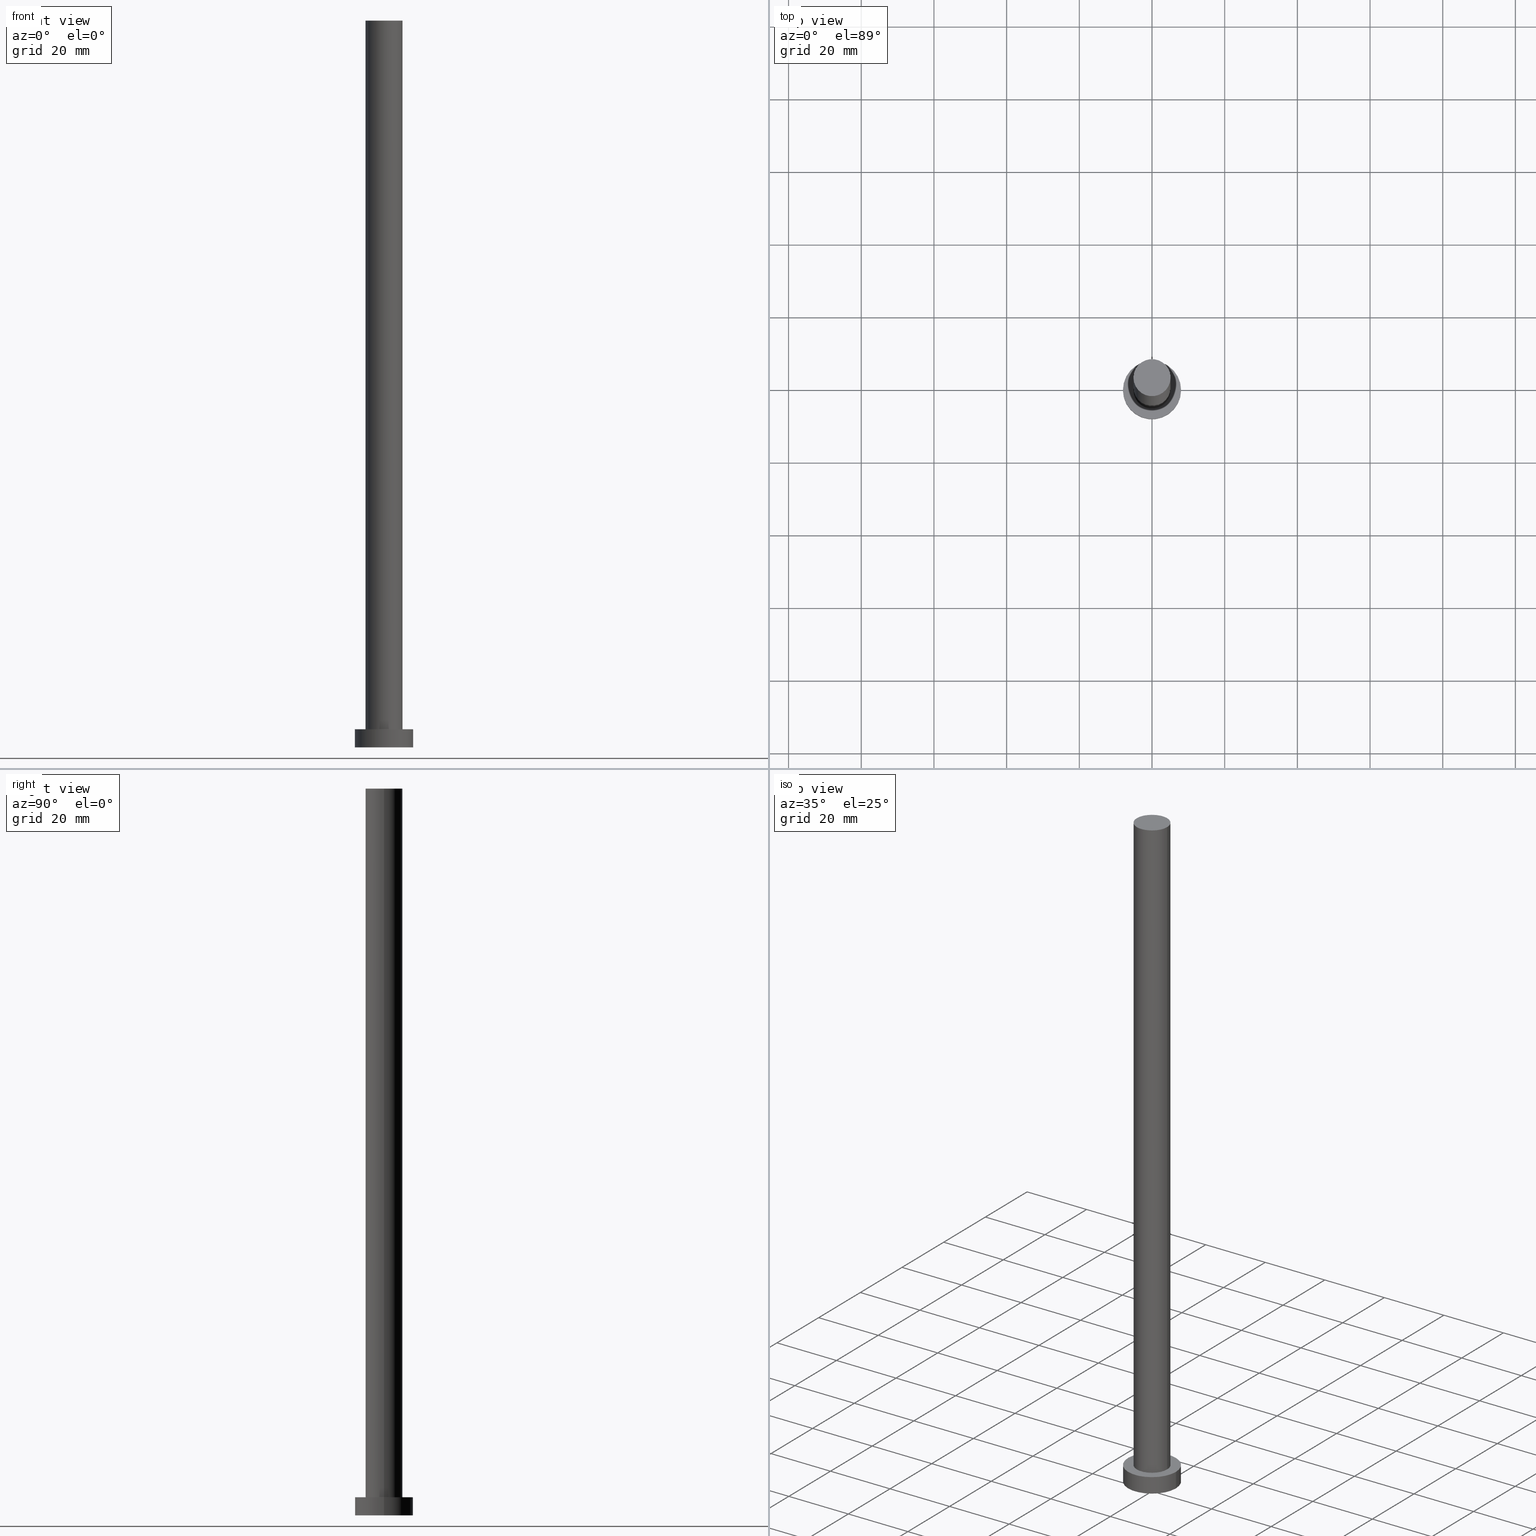
[diagram: canonical four-view strip — front | top / right | iso, engineering-drawing reading convention]
A machine part, canonical four-view strip (front | top / right | iso — engineering-drawing reading convention). The complete STEP part file that produces these views, byte-faithful:
ISO-10303-21;
HEADER;
FILE_DESCRIPTION (( 'STEP AP203' ),
    '1' );
FILE_NAME ('22e8.STEP',
    '2023-02-12T10:59:09',
    ( '' ),
    ( '' ),
    'SwSTEP 2.0',
    'SolidWorks 2019',
    '' );
FILE_SCHEMA (( 'CONFIG_CONTROL_DESIGN' ));
ENDSEC;

DATA;
#1 = EDGE_CURVE ( 'NONE', #16, #27, #253, .T. ) ;
#2 = CC_DESIGN_APPROVAL ( #31, ( #178 ) ) ;
#3 = CARTESIAN_POINT ( 'NONE',  ( 8.000000000000000000, 9.797174393178825657E-16, 5.000000000000000000 ) ) ;
#4 = CARTESIAN_POINT ( 'NONE',  ( 0.000000000000000000, 0.000000000000000000, 200.0000000000000000 ) ) ;
#5 = CC_DESIGN_APPROVAL ( #152, ( #174 ) ) ;
#6 = ORIENTED_EDGE ( 'NONE', *, *, #137, .T. ) ;
#7 = DIRECTION ( 'NONE',  ( 1.000000000000000000, 0.000000000000000000, -0.000000000000000000 ) ) ;
#8 = CC_DESIGN_PERSON_AND_ORGANIZATION_ASSIGNMENT ( #116, #33, ( #174 ) ) ;
#9 = DIRECTION ( 'NONE',  ( 1.000000000000000000, 0.000000000000000000, 0.000000000000000000 ) ) ;
#10 = CARTESIAN_POINT ( 'NONE',  ( 0.000000000000000000, 0.000000000000000000, 0.000000000000000000 ) ) ;
#11 = CARTESIAN_POINT ( 'NONE',  ( 0.000000000000000000, 0.000000000000000000, 200.0000000000000000 ) ) ;
#12 = AXIS2_PLACEMENT_3D ( 'NONE', #143, #42, #192 ) ;
#13 = COORDINATED_UNIVERSAL_TIME_OFFSET ( 1, 0, .AHEAD. ) ;
#14 = CALENDAR_DATE ( 2023, 12, 2 ) ;
#15 = ADVANCED_FACE ( 'NONE', ( #100 ), #175, .T. ) ;
#16 = VERTEX_POINT ( 'NONE', #93 ) ;
#17 = APPLICATION_PROTOCOL_DEFINITION ( 'international standard', 'config_control_design', 1994, #177 ) ;
#18 = ORIENTED_EDGE ( 'NONE', *, *, #233, .T. ) ;
#19 = EDGE_LOOP ( 'NONE', ( #122, #202, #98, #48 ) ) ;
#20 = APPROVAL_PERSON_ORGANIZATION ( #231, #152, #149 ) ;
#21 = LINE ( 'NONE', #159, #189 ) ;
#22 = DIRECTION ( 'NONE',  ( 0.000000000000000000, 0.000000000000000000, 1.000000000000000000 ) ) ;
#23 = EDGE_CURVE ( 'NONE', #170, #27, #255, .T. ) ;
#24 = VERTEX_POINT ( 'NONE', #25 ) ;
#25 = CARTESIAN_POINT ( 'NONE',  ( -5.099999999999999645, 0.000000000000000000, 200.0000000000000000 ) ) ;
#26 = EDGE_CURVE ( 'NONE', #16, #134, #28, .T. ) ;
#27 = VERTEX_POINT ( 'NONE', #103 ) ;
#28 = CIRCLE ( 'NONE', #172, 8.000000000000000000 ) ;
#29 = CARTESIAN_POINT ( 'NONE',  ( 0.000000000000000000, 0.000000000000000000, 5.000000000000000000 ) ) ;
#30 = FACE_OUTER_BOUND ( 'NONE', #120, .T. ) ;
#31 = APPROVAL ( #34, 'NEUR�EN�' ) ;
#32 = LOCAL_TIME ( 11, 59, 9.000000000000000000, #36 ) ;
#33 = PERSON_AND_ORGANIZATION_ROLE ( 'creator' ) ;
#34 = APPROVAL_STATUS ( 'not_yet_approved' ) ;
#35 = ORIENTED_EDGE ( 'NONE', *, *, #104, .T. ) ;
#36 = COORDINATED_UNIVERSAL_TIME_OFFSET ( 1, 0, .AHEAD. ) ;
#37 = LOCAL_TIME ( 11, 59, 9.000000000000000000, #13 ) ;
#38 = DATE_TIME_ROLE ( 'creation_date' ) ;
#39 = CARTESIAN_POINT ( 'NONE',  ( -8.000000000000000000, 0.000000000000000000, 5.000000000000000000 ) ) ;
#40 = AXIS2_PLACEMENT_3D ( 'NONE', #241, #180, #79 ) ;
#41 = ORIENTED_EDGE ( 'NONE', *, *, #23, .F. ) ;
#42 = DIRECTION ( 'NONE',  ( 0.000000000000000000, 0.000000000000000000, 1.000000000000000000 ) ) ;
#43 = EDGE_LOOP ( 'NONE', ( #221, #225, #112, #251 ) ) ;
#44 = CIRCLE ( 'NONE', #205, 5.099999999999999645 ) ;
#45 = CARTESIAN_POINT ( 'NONE',  ( -5.099999999999999645, 0.000000000000000000, 200.0000000000000000 ) ) ;
#46 = EDGE_CURVE ( 'NONE', #24, #125, #135, .T. ) ;
#47 = DIRECTION ( 'NONE',  ( 0.000000000000000000, 0.000000000000000000, 1.000000000000000000 ) ) ;
#48 = ORIENTED_EDGE ( 'NONE', *, *, #167, .T. ) ;
#49 = DIRECTION ( 'NONE',  ( 1.000000000000000000, 0.000000000000000000, 0.000000000000000000 ) ) ;
#50 =( NAMED_UNIT ( * ) SI_UNIT ( $, .STERADIAN. ) SOLID_ANGLE_UNIT ( ) );
#51 = ORIENTED_EDGE ( 'NONE', *, *, #167, .F. ) ;
#52 = DIRECTION ( 'NONE',  ( -0.000000000000000000, -0.000000000000000000, -1.000000000000000000 ) ) ;
#53 = CALENDAR_DATE ( 2023, 12, 2 ) ;
#54 = AXIS2_PLACEMENT_3D ( 'NONE', #127, #52, #182 ) ;
#55 = COORDINATED_UNIVERSAL_TIME_OFFSET ( 1, 0, .AHEAD. ) ;
#56 = APPROVAL ( #113, 'NEUR�EN�' ) ;
#57 = EDGE_LOOP ( 'NONE', ( #191, #227, #35, #18 ) ) ;
#58 = PERSON_AND_ORGANIZATION_ROLE ( 'classification_officer' ) ;
#59 = APPROVAL_DATE_TIME ( #235, #31 ) ;
#60 = PERSON ( 'NEUR�EN�', 'NEUR�EN�', 'NEUR�EN�', ('NEUR�EN�'), ('NEUR�EN�'), ('NEUR�EN�') ) ;
#61 = ORIENTED_EDGE ( 'NONE', *, *, #245, .T. ) ;
#62 = CC_DESIGN_PERSON_AND_ORGANIZATION_ASSIGNMENT ( #97, #148, ( #178 ) ) ;
#63 = UNCERTAINTY_MEASURE_WITH_UNIT (LENGTH_MEASURE( 1.000000000000000082E-05 ), #203, 'distance_accuracy_value', 'NONE');
#64 = DIRECTION ( 'NONE',  ( 0.000000000000000000, 0.000000000000000000, 1.000000000000000000 ) ) ;
#65 = AXIS2_PLACEMENT_3D ( 'NONE', #29, #204, #166 ) ;
#66 = CIRCLE ( 'NONE', #179, 8.000000000000000000 ) ;
#67 = LINE ( 'NONE', #45, #230 ) ;
#68 = DIRECTION ( 'NONE',  ( -0.000000000000000000, -0.000000000000000000, -1.000000000000000000 ) ) ;
#69 = FACE_OUTER_BOUND ( 'NONE', #220, .T. ) ;
#70 = CARTESIAN_POINT ( 'NONE',  ( 5.099999999999999645, 6.245698675651500839E-16, 5.000000000000000000 ) ) ;
#71 = CLOSED_SHELL ( 'NONE', ( #229, #15, #77, #219, #123, #95, #85 ) ) ;
#72 = ORIENTED_EDGE ( 'NONE', *, *, #121, .F. ) ;
#73 = LOCAL_TIME ( 11, 59, 9.000000000000000000, #55 ) ;
#74 = CALENDAR_DATE ( 2023, 12, 2 ) ;
#75 = CARTESIAN_POINT ( 'NONE',  ( 0.000000000000000000, 0.000000000000000000, 5.000000000000000000 ) ) ;
#76 = PERSON_AND_ORGANIZATION ( #60, #130 ) ;
#77 = ADVANCED_FACE ( 'NONE', ( #239 ), #157, .T. ) ;
#78 = APPROVAL_DATE_TIME ( #216, #56 ) ;
#79 = DIRECTION ( 'NONE',  ( -1.000000000000000000, 0.000000000000000000, 0.000000000000000000 ) ) ;
#80 = DIRECTION ( 'NONE',  ( 0.000000000000000000, 0.000000000000000000, 1.000000000000000000 ) ) ;
#81 = PLANE ( 'NONE',  #117 ) ;
#82 = VECTOR ( 'NONE', #250, 1000.000000000000000 ) ;
#83 = PLANE ( 'NONE',  #65 ) ;
#84 = CARTESIAN_POINT ( 'NONE',  ( 8.000000000000000000, 9.797174393178825657E-16, 0.000000000000000000 ) ) ;
#85 = ADVANCED_FACE ( 'NONE', ( #140 ), #81, .T. ) ;
#86 = FACE_BOUND ( 'NONE', #96, .T. ) ;
#87 = DIRECTION ( 'NONE',  ( 1.000000000000000000, 0.000000000000000000, 0.000000000000000000 ) ) ;
#88 = EDGE_CURVE ( 'NONE', #125, #243, #21, .T. ) ;
#89 = DATE_AND_TIME ( #74, #32 ) ;
#90 = CIRCLE ( 'NONE', #126, 5.099999999999999645 ) ;
#91 = CALENDAR_DATE ( 2023, 12, 2 ) ;
#92 = PRODUCT ( '22e8', '22e8', '', ( #236 ) ) ;
#93 = CARTESIAN_POINT ( 'NONE',  ( -8.000000000000000000, 0.000000000000000000, 5.000000000000000000 ) ) ;
#94 = AXIS2_PLACEMENT_3D ( 'NONE', #4, #80, #99 ) ;
#95 = ADVANCED_FACE ( 'NONE', ( #163 ), #224, .T. ) ;
#96 = EDGE_LOOP ( 'NONE', ( #165, #72 ) ) ;
#97 = PERSON_AND_ORGANIZATION ( #60, #130 ) ;
#98 = ORIENTED_EDGE ( 'NONE', *, *, #1, .T. ) ;
#99 = DIRECTION ( 'NONE',  ( 1.000000000000000000, 0.000000000000000000, 0.000000000000000000 ) ) ;
#100 = FACE_OUTER_BOUND ( 'NONE', #194, .T. ) ;
#101 = DIRECTION ( 'NONE',  ( 1.000000000000000000, 0.000000000000000000, 0.000000000000000000 ) ) ;
#102 = CARTESIAN_POINT ( 'NONE',  ( 0.000000000000000000, 0.000000000000000000, 5.000000000000000000 ) ) ;
#103 = CARTESIAN_POINT ( 'NONE',  ( -8.000000000000000000, 0.000000000000000000, 0.000000000000000000 ) ) ;
#104 = EDGE_CURVE ( 'NONE', #24, #217, #67, .T. ) ;
#105 = FACE_OUTER_BOUND ( 'NONE', #43, .T. ) ;
#106 = APPLICATION_PROTOCOL_DEFINITION ( 'international standard', 'config_control_design', 1994, #109 ) ;
#107 = DIRECTION ( 'NONE',  ( 0.000000000000000000, 0.000000000000000000, 1.000000000000000000 ) ) ;
#108 = CARTESIAN_POINT ( 'NONE',  ( 0.000000000000000000, 0.000000000000000000, 5.000000000000000000 ) ) ;
#109 = APPLICATION_CONTEXT ( 'configuration controlled 3d designs of mechanical parts and assemblies' ) ;
#110 = PERSON_AND_ORGANIZATION ( #60, #130 ) ;
#111 = CALENDAR_DATE ( 2023, 12, 2 ) ;
#112 = ORIENTED_EDGE ( 'NONE', *, *, #121, .T. ) ;
#113 = APPROVAL_STATUS ( 'not_yet_approved' ) ;
#114 =( GEOMETRIC_REPRESENTATION_CONTEXT ( 3 ) GLOBAL_UNCERTAINTY_ASSIGNED_CONTEXT ( ( #63 ) ) GLOBAL_UNIT_ASSIGNED_CONTEXT ( ( #203, #246, #50 ) ) REPRESENTATION_CONTEXT ( 'NONE', 'WORKASPACE' ) );
#115 = DIRECTION ( 'NONE',  ( -1.000000000000000000, 0.000000000000000000, 0.000000000000000000 ) ) ;
#116 = PERSON_AND_ORGANIZATION ( #60, #130 ) ;
#117 = AXIS2_PLACEMENT_3D ( 'NONE', #238, #142, #7 ) ;
#118 = ORIENTED_EDGE ( 'NONE', *, *, #1, .F. ) ;
#119 = DIRECTION ( 'NONE',  ( -0.000000000000000000, -0.000000000000000000, -1.000000000000000000 ) ) ;
#120 = EDGE_LOOP ( 'NONE', ( #154, #6 ) ) ;
#121 = EDGE_CURVE ( 'NONE', #243, #217, #218, .T. ) ;
#122 = ORIENTED_EDGE ( 'NONE', *, *, #210, .F. ) ;
#123 = ADVANCED_FACE ( 'NONE', ( #69 ), #237, .F. ) ;
#124 = CARTESIAN_POINT ( 'NONE',  ( -5.099999999999999645, 0.000000000000000000, 5.000000000000000000 ) ) ;
#125 = VERTEX_POINT ( 'NONE', #176 ) ;
#126 = AXIS2_PLACEMENT_3D ( 'NONE', #11, #144, #226 ) ;
#127 = CARTESIAN_POINT ( 'NONE',  ( 0.000000000000000000, 0.000000000000000000, 200.0000000000000000 ) ) ;
#128 = DIRECTION ( 'NONE',  ( 0.000000000000000000, 0.000000000000000000, 1.000000000000000000 ) ) ;
#129 = PERSON_AND_ORGANIZATION ( #60, #130 ) ;
#130 = ORGANIZATION ( 'NEUR�EN�', 'NEUR�EN�', '' ) ;
#131 = ORIENTED_EDGE ( 'NONE', *, *, #137, .F. ) ;
#132 = DATE_TIME_ROLE ( 'classification_date' ) ;
#133 = COORDINATED_UNIVERSAL_TIME_OFFSET ( 1, 0, .AHEAD. ) ;
#134 = VERTEX_POINT ( 'NONE', #3 ) ;
#135 = CIRCLE ( 'NONE', #94, 5.099999999999999645 ) ;
#136 = DESIGN_CONTEXT ( 'detailed design', #177, 'design' ) ;
#137 = EDGE_CURVE ( 'NONE', #134, #16, #66, .T. ) ;
#138 = EDGE_LOOP ( 'NONE', ( #214, #61 ) ) ;
#139 = SHAPE_DEFINITION_REPRESENTATION ( #232, #156 ) ;
#140 = FACE_OUTER_BOUND ( 'NONE', #138, .T. ) ;
#141 = AXIS2_PLACEMENT_3D ( 'NONE', #173, #198, #196 ) ;
#142 = DIRECTION ( 'NONE',  ( 0.000000000000000000, 0.000000000000000000, 1.000000000000000000 ) ) ;
#143 = CARTESIAN_POINT ( 'NONE',  ( 0.000000000000000000, 0.000000000000000000, 0.000000000000000000 ) ) ;
#144 = DIRECTION ( 'NONE',  ( 0.000000000000000000, 0.000000000000000000, 1.000000000000000000 ) ) ;
#145 = CC_DESIGN_PERSON_AND_ORGANIZATION_ASSIGNMENT ( #110, #151, ( #174 ) ) ;
#146 = CARTESIAN_POINT ( 'NONE',  ( 0.000000000000000000, 0.000000000000000000, 0.000000000000000000 ) ) ;
#147 = APPROVAL_PERSON_ORGANIZATION ( #215, #56, #171 ) ;
#148 = PERSON_AND_ORGANIZATION_ROLE ( 'creator' ) ;
#149 = APPROVAL_ROLE ( '' ) ;
#150 = DIRECTION ( 'NONE',  ( -0.000000000000000000, -0.000000000000000000, -1.000000000000000000 ) ) ;
#151 = PERSON_AND_ORGANIZATION_ROLE ( 'design_supplier' ) ;
#152 = APPROVAL ( #252, 'NEUR�EN�' ) ;
#153 = DIRECTION ( 'NONE',  ( -0.000000000000000000, -0.000000000000000000, -1.000000000000000000 ) ) ;
#154 = ORIENTED_EDGE ( 'NONE', *, *, #26, .T. ) ;
#155 = CARTESIAN_POINT ( 'NONE',  ( 0.000000000000000000, 0.000000000000000000, 5.000000000000000000 ) ) ;
#156 = ADVANCED_BREP_SHAPE_REPRESENTATION ( '22e8', ( #211, #228 ), #114 ) ;
#157 = CYLINDRICAL_SURFACE ( 'NONE', #160, 8.000000000000000000 ) ;
#158 = APPROVAL_PERSON_ORGANIZATION ( #169, #31, #212 ) ;
#159 = CARTESIAN_POINT ( 'NONE',  ( 5.099999999999999645, 6.245698675651500839E-16, 200.0000000000000000 ) ) ;
#160 = AXIS2_PLACEMENT_3D ( 'NONE', #162, #68, #222 ) ;
#161 = PRODUCT_RELATED_PRODUCT_CATEGORY ( 'detail', '', ( #92 ) ) ;
#162 = CARTESIAN_POINT ( 'NONE',  ( 0.000000000000000000, 0.000000000000000000, 5.000000000000000000 ) ) ;
#163 = FACE_OUTER_BOUND ( 'NONE', #57, .T. ) ;
#164 = LOCAL_TIME ( 11, 59, 9.000000000000000000, #188 ) ;
#165 = ORIENTED_EDGE ( 'NONE', *, *, #233, .F. ) ;
#166 = DIRECTION ( 'NONE',  ( 1.000000000000000000, 0.000000000000000000, -0.000000000000000000 ) ) ;
#167 = EDGE_CURVE ( 'NONE', #27, #170, #206, .T. ) ;
#168 = DATE_AND_TIME ( #14, #37 ) ;
#169 = PERSON_AND_ORGANIZATION ( #60, #130 ) ;
#170 = VERTEX_POINT ( 'NONE', #84 ) ;
#171 = APPROVAL_ROLE ( '' ) ;
#172 = AXIS2_PLACEMENT_3D ( 'NONE', #102, #22, #101 ) ;
#173 = CARTESIAN_POINT ( 'NONE',  ( 0.000000000000000000, 0.000000000000000000, 0.000000000000000000 ) ) ;
#174 = PRODUCT_DEFINITION_FORMATION_WITH_SPECIFIED_SOURCE ( 'LIBOVOLN�', '', #92, .NOT_KNOWN. ) ;
#175 = CYLINDRICAL_SURFACE ( 'NONE', #248, 8.000000000000000000 ) ;
#176 = CARTESIAN_POINT ( 'NONE',  ( 5.099999999999999645, 6.245698675651500839E-16, 200.0000000000000000 ) ) ;
#177 = APPLICATION_CONTEXT ( 'configuration controlled 3d designs of mechanical parts and assemblies' ) ;
#178 = PRODUCT_DEFINITION ( 'NEZN�M�', '', #174, #136 ) ;
#179 = AXIS2_PLACEMENT_3D ( 'NONE', #155, #64, #247 ) ;
#180 = DIRECTION ( 'NONE',  ( -0.000000000000000000, -0.000000000000000000, -1.000000000000000000 ) ) ;
#181 = SECURITY_CLASSIFICATION ( '', '', #184 ) ;
#182 = DIRECTION ( 'NONE',  ( -1.000000000000000000, 0.000000000000000000, 0.000000000000000000 ) ) ;
#183 = DIRECTION ( 'NONE',  ( 1.000000000000000000, 0.000000000000000000, 0.000000000000000000 ) ) ;
#184 = SECURITY_CLASSIFICATION_LEVEL ( 'unclassified' ) ;
#185 = DATE_AND_TIME ( #53, #73 ) ;
#186 = ORIENTED_EDGE ( 'NONE', *, *, #210, .T. ) ;
#187 = CC_DESIGN_SECURITY_CLASSIFICATION ( #181, ( #174 ) ) ;
#188 = COORDINATED_UNIVERSAL_TIME_OFFSET ( 1, 0, .AHEAD. ) ;
#189 = VECTOR ( 'NONE', #240, 1000.000000000000000 ) ;
#190 = PERSON_AND_ORGANIZATION_ROLE ( 'design_owner' ) ;
#191 = ORIENTED_EDGE ( 'NONE', *, *, #88, .F. ) ;
#192 = DIRECTION ( 'NONE',  ( 1.000000000000000000, 0.000000000000000000, -0.000000000000000000 ) ) ;
#193 = LOCAL_TIME ( 11, 59, 9.000000000000000000, #133 ) ;
#194 = EDGE_LOOP ( 'NONE', ( #131, #186, #199, #118 ) ) ;
#195 = CC_DESIGN_PERSON_AND_ORGANIZATION_ASSIGNMENT ( #76, #58, ( #181 ) ) ;
#196 = DIRECTION ( 'NONE',  ( 1.000000000000000000, 0.000000000000000000, 0.000000000000000000 ) ) ;
#197 = AXIS2_PLACEMENT_3D ( 'NONE', #10, #128, #87 ) ;
#198 = DIRECTION ( 'NONE',  ( 0.000000000000000000, 0.000000000000000000, 1.000000000000000000 ) ) ;
#199 = ORIENTED_EDGE ( 'NONE', *, *, #23, .T. ) ;
#200 = CC_DESIGN_DATE_AND_TIME_ASSIGNMENT ( #89, #38, ( #178 ) ) ;
#201 = AXIS2_PLACEMENT_3D ( 'NONE', #223, #47, #49 ) ;
#202 = ORIENTED_EDGE ( 'NONE', *, *, #26, .F. ) ;
#203 =( LENGTH_UNIT ( ) NAMED_UNIT ( * ) SI_UNIT ( .MILLI., .METRE. ) );
#204 = DIRECTION ( 'NONE',  ( 0.000000000000000000, 0.000000000000000000, 1.000000000000000000 ) ) ;
#205 = AXIS2_PLACEMENT_3D ( 'NONE', #108, #207, #183 ) ;
#206 = CIRCLE ( 'NONE', #197, 8.000000000000000000 ) ;
#207 = DIRECTION ( 'NONE',  ( 0.000000000000000000, 0.000000000000000000, 1.000000000000000000 ) ) ;
#208 = VECTOR ( 'NONE', #150, 1000.000000000000000 ) ;
#209 = LINE ( 'NONE', #242, #82 ) ;
#210 = EDGE_CURVE ( 'NONE', #134, #170, #209, .T. ) ;
#211 = MANIFOLD_SOLID_BREP ( 'P�idat vysunut�m3', #71 ) ;
#212 = APPROVAL_ROLE ( '' ) ;
#213 = CC_DESIGN_DATE_AND_TIME_ASSIGNMENT ( #168, #132, ( #181 ) ) ;
#214 = ORIENTED_EDGE ( 'NONE', *, *, #46, .T. ) ;
#215 = PERSON_AND_ORGANIZATION ( #60, #130 ) ;
#216 = DATE_AND_TIME ( #91, #193 ) ;
#217 = VERTEX_POINT ( 'NONE', #124 ) ;
#218 = CIRCLE ( 'NONE', #201, 5.099999999999999645 ) ;
#219 = ADVANCED_FACE ( 'NONE', ( #86, #30 ), #83, .T. ) ;
#220 = EDGE_LOOP ( 'NONE', ( #51, #41 ) ) ;
#221 = ORIENTED_EDGE ( 'NONE', *, *, #245, .F. ) ;
#222 = DIRECTION ( 'NONE',  ( -1.000000000000000000, 0.000000000000000000, 0.000000000000000000 ) ) ;
#223 = CARTESIAN_POINT ( 'NONE',  ( 0.000000000000000000, 0.000000000000000000, 5.000000000000000000 ) ) ;
#224 = CYLINDRICAL_SURFACE ( 'NONE', #40, 5.099999999999999645 ) ;
#225 = ORIENTED_EDGE ( 'NONE', *, *, #88, .T. ) ;
#226 = DIRECTION ( 'NONE',  ( 1.000000000000000000, 0.000000000000000000, 0.000000000000000000 ) ) ;
#227 = ORIENTED_EDGE ( 'NONE', *, *, #46, .F. ) ;
#228 = AXIS2_PLACEMENT_3D ( 'NONE', #146, #107, #9 ) ;
#229 = ADVANCED_FACE ( 'NONE', ( #105 ), #244, .T. ) ;
#230 = VECTOR ( 'NONE', #119, 1000.000000000000000 ) ;
#231 = PERSON_AND_ORGANIZATION ( #60, #130 ) ;
#232 = PRODUCT_DEFINITION_SHAPE ( 'NONE', 'NONE',  #178 ) ;
#233 = EDGE_CURVE ( 'NONE', #217, #243, #44, .T. ) ;
#234 = CC_DESIGN_APPROVAL ( #56, ( #181 ) ) ;
#235 = DATE_AND_TIME ( #111, #164 ) ;
#236 = MECHANICAL_CONTEXT ( 'NONE', #109, 'mechanical' ) ;
#237 = PLANE ( 'NONE',  #12 ) ;
#238 = CARTESIAN_POINT ( 'NONE',  ( 0.000000000000000000, 0.000000000000000000, 200.0000000000000000 ) ) ;
#239 = FACE_OUTER_BOUND ( 'NONE', #19, .T. ) ;
#240 = DIRECTION ( 'NONE',  ( -0.000000000000000000, -0.000000000000000000, -1.000000000000000000 ) ) ;
#241 = CARTESIAN_POINT ( 'NONE',  ( 0.000000000000000000, 0.000000000000000000, 200.0000000000000000 ) ) ;
#242 = CARTESIAN_POINT ( 'NONE',  ( 8.000000000000000000, 9.797174393178825657E-16, 5.000000000000000000 ) ) ;
#243 = VERTEX_POINT ( 'NONE', #70 ) ;
#244 = CYLINDRICAL_SURFACE ( 'NONE', #54, 5.099999999999999645 ) ;
#245 = EDGE_CURVE ( 'NONE', #125, #24, #90, .T. ) ;
#246 =( NAMED_UNIT ( * ) PLANE_ANGLE_UNIT ( ) SI_UNIT ( $, .RADIAN. ) );
#247 = DIRECTION ( 'NONE',  ( 1.000000000000000000, 0.000000000000000000, 0.000000000000000000 ) ) ;
#248 = AXIS2_PLACEMENT_3D ( 'NONE', #75, #153, #115 ) ;
#249 = CC_DESIGN_PERSON_AND_ORGANIZATION_ASSIGNMENT ( #129, #190, ( #92 ) ) ;
#250 = DIRECTION ( 'NONE',  ( -0.000000000000000000, -0.000000000000000000, -1.000000000000000000 ) ) ;
#251 = ORIENTED_EDGE ( 'NONE', *, *, #104, .F. ) ;
#252 = APPROVAL_STATUS ( 'not_yet_approved' ) ;
#253 = LINE ( 'NONE', #39, #208 ) ;
#254 = APPROVAL_DATE_TIME ( #185, #152 ) ;
#255 = CIRCLE ( 'NONE', #141, 8.000000000000000000 ) ;
ENDSEC;
END-ISO-10303-21;
